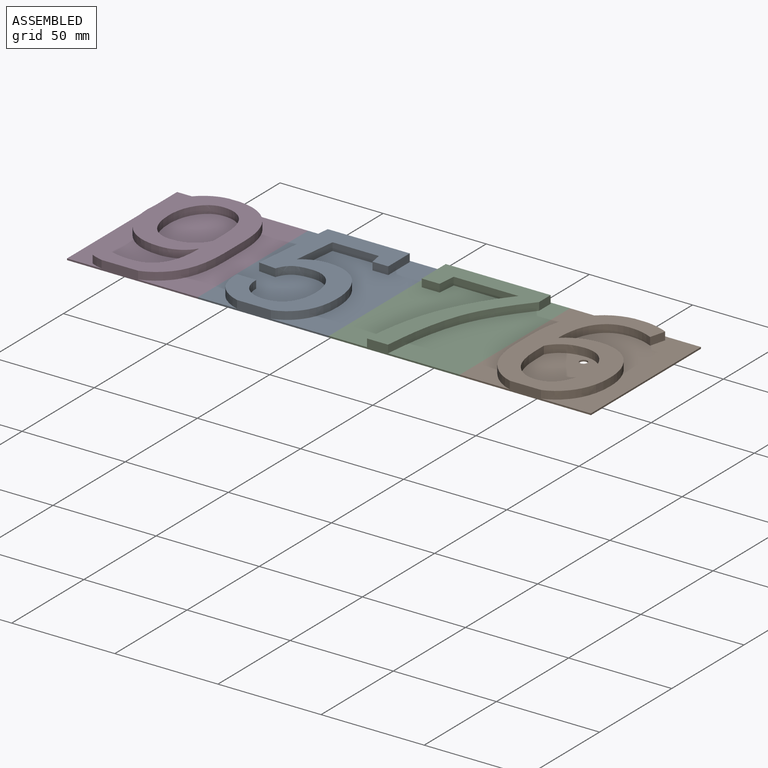
[diagram: assembled view]
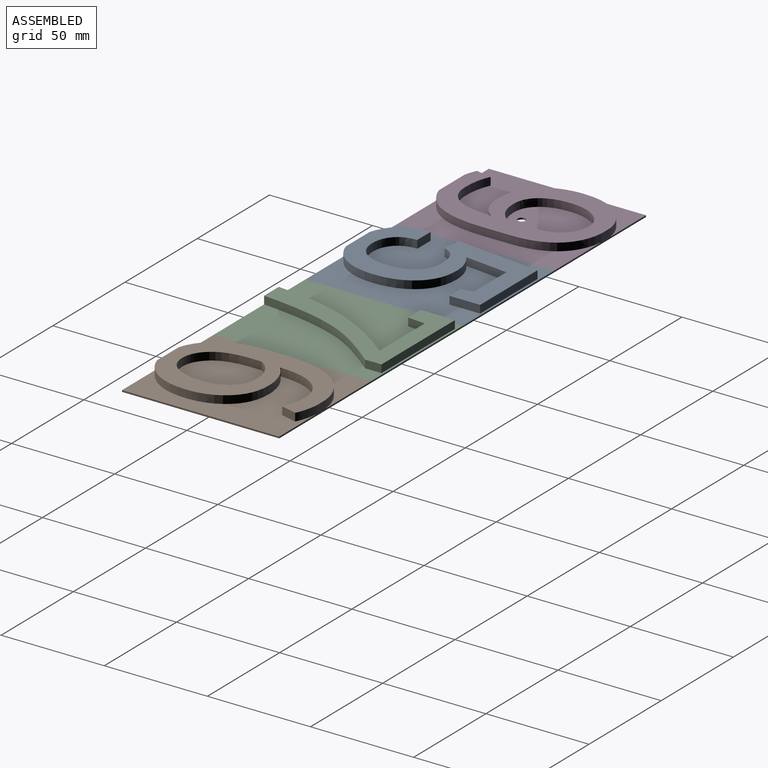
[diagram: assembled view, second angle]
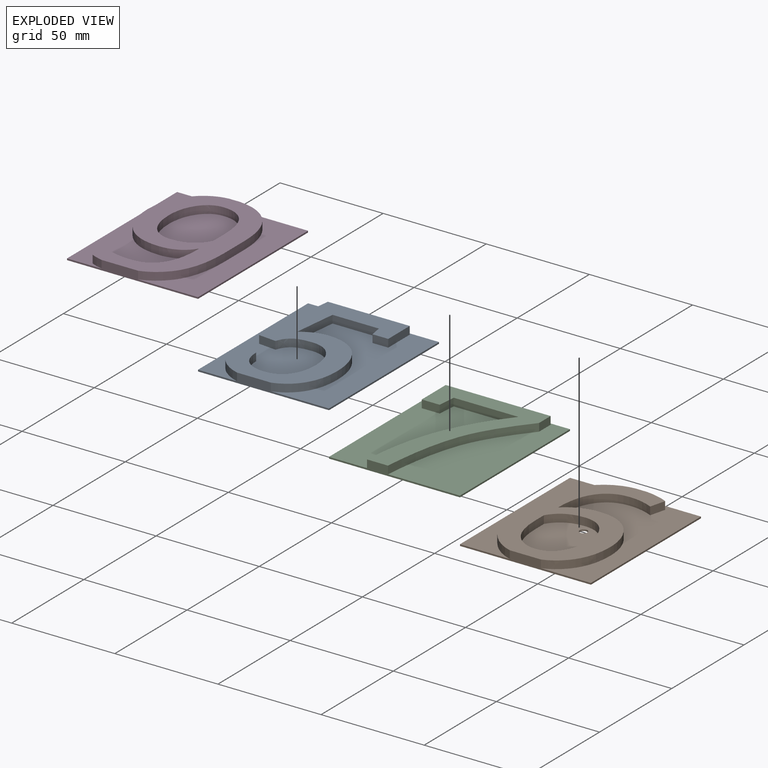
[diagram: exploded view]
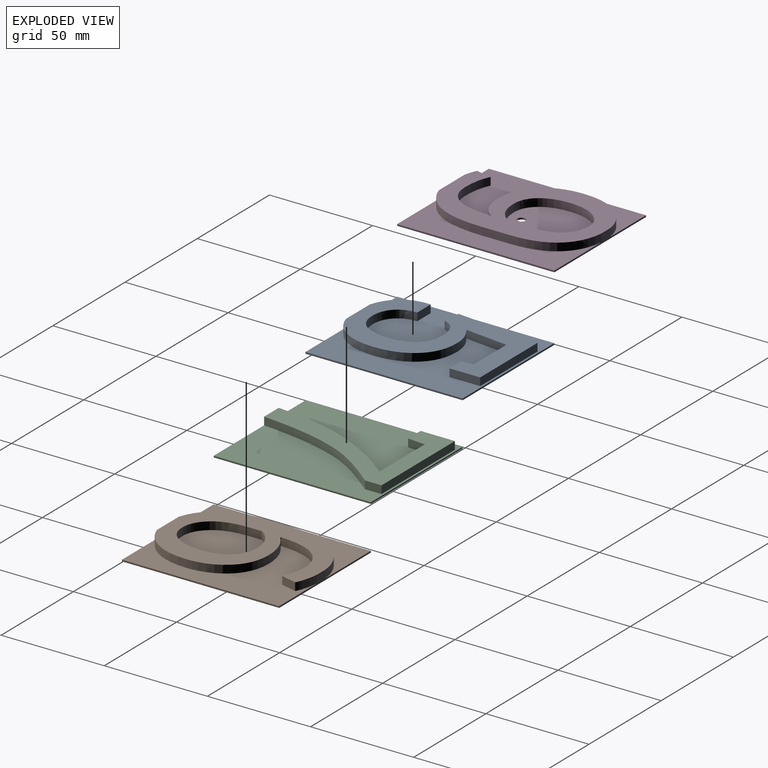
[diagram: exploded view, second angle]
ASSEMBLY  parts=4 mates=3
PART A: 33 faces, bbox 63.5x76.5x4.6 mm
  f0: plane 76.5x63.5mm, normal (0,0,1), area 3183.8mm2, adj f1,f2,f3,f4,f6,f7,f8,f9
  f1: plane 63.5x4.57mm, normal (0,-1,0), area 111mm2, adj f0,f2,f4,f5,f6,f31,f32
  f2: plane 76.2x0.76mm, normal (1,0,0), area 58.1mm2, adj f0,f1,f3,f5
  f3: plane 63.5x0.76mm, normal (0,1,0), area 48.4mm2, adj f0,f2,f4,f5
  f4: plane 76.2x0.76mm, normal (-1,0,0), area 58.1mm2, adj f0,f1,f3,f5
  f5: plane 76.2x63.5mm, normal (0,0,-1), area 4838.7mm2, adj f1,f2,f3,f4
  f6: extruded ~9.32x5.79mm, area 42.4mm2, adj f0,f1,f7,f32
  f7: extruded ~18.19x6.08mm, area 74.7mm2, adj f0,f6,f8,f32
  f8: extruded ~18.5x5.97mm, area 75.7mm2, adj f0,f7,f9,f32
  f9: extruded ~16.35x6.77mm, area 69.7mm2, adj f0,f8,f10,f32
  f10: extruded ~6.75x3.81mm, area 26.3mm2, adj f0,f9,f11,f32
  f11: extruded ~5.24x3.81mm, area 22.9mm2, adj f0,f10,f12,f32
  f12: plane 21.13x3.81mm, normal (0.99,-0.11,0), area 81mm2, adj f0,f11,f13,f32
  f13: plane 22.47x3.81mm, normal (0,-1,0), area 85.6mm2, adj f0,f12,f14,f32
  f14: plane 5.84x3.81mm, normal (-0.99,-0.16,0), area 22.5mm2, adj f0,f13,f15,f32
  f15: plane 7.66x3.81mm, normal (0,-1,0), area 29.2mm2, adj f0,f14,f16,f32
  f16: plane 14.88x3.81mm, normal (1,0,0), area 56.7mm2, adj f0,f15,f17,f32
  f17: plane 39.74x3.81mm, normal (0,1,0), area 151.4mm2, adj f0,f16,f18,f32
  f18: plane 41.29x4.35mm, normal (-0.99,0.1,0), area 158.2mm2, adj f0,f17,f19,f32
  f19: plane 8.48x3.81mm, normal (-0.1,-0.99,0), area 32.5mm2, adj f0,f18,f20,f32
  f20: extruded ~5.53x3.95mm, area 26.4mm2, adj f0,f19,f21,f32
  f21: extruded ~8.7x3.81mm, area 34.3mm2, adj f0,f20,f22,f32
  f22: extruded ~9.96x4.63mm, area 43.4mm2, adj f0,f21,f23,f32
  f23: extruded ~11.91x3.81mm, area 48.3mm2, adj f0,f22,f24,f32
  f24: extruded ~12.45x3.81mm, area 50.3mm2, adj f0,f23,f25,f32
  f25: extruded ~10.03x4.55mm, area 43.6mm2, adj f0,f24,f26,f32
  f26: extruded ~9.11x3.81mm, area 38mm2, adj f0,f25,f27,f32
  f27: extruded ~9.51x3.81mm, area 39.8mm2, adj f0,f26,f28,f32
  f28: plane 9.21x3.81mm, normal (0,1,0), area 35.1mm2, adj f0,f27,f29,f32
  f29: plane 3.81x0.31mm, normal (-0.95,0.3,0), area 1.3mm2, adj f0,f28,f30,f32
  f30: extruded ~15.35x6.09mm, area 65.2mm2, adj f0,f29,f31,f32
  f31: extruded ~7.82x4.13mm, area 33.9mm2, adj f0,f1,f30,f32
  f32: plane 75.54x45.99mm, normal (0,0,1), area 1654.9mm2, adj f1,f6,f7,f8,f9,f10,f11,f12
PART B: 38 faces, bbox 63.5x76.7x4.6 mm
  f0: plane 76.53x46.75mm, normal (0,0,1), area 1557.5mm2, adj f2,f3,f4,f15,f21,f22,f23,f24
  f1: plane 76.66x32.2mm, normal (0,0,1), area 788.7mm2, adj f2,f4,f5,f16,f17,f18,f19,f20
  f2: plane 63.5x4.57mm, normal (0,-1,0), area 106.2mm2, adj f0,f1,f3,f5,f6,f20,f21,f35
  f3: plane 76.2x0.76mm, normal (1,0,0), area 58.1mm2, adj f0,f2,f4,f6
  f4: plane 63.5x4.57mm, normal (0,1,0), area 70.6mm2, adj f0,f1,f3,f5,f6,f15,f16,f35
  f5: plane 76.2x0.76mm, normal (-1,0,0), area 58.1mm2, adj f1,f2,f4,f6
  f6: plane 76.2x63.5mm, normal (0,0,-1), area 4827.9mm2, adj f2,f3,f4,f5,f37
  f7: extruded ~8.9x3.81mm, area 35.2mm2, adj f8,f34,f35,f36
  f8: extruded ~10.36x4.81mm, area 45.2mm2, adj f7,f9,f35,f36
  f9: extruded ~12.25x3.81mm, area 49.7mm2, adj f8,f10,f35,f36
  f10: extruded ~13.15x3.81mm, area 52.6mm2, adj f9,f11,f35,f36
  f11: extruded ~9.74x5.29mm, area 44.2mm2, adj f10,f12,f35,f36
  f12: extruded ~10.98x5.63mm, area 48.8mm2, adj f11,f13,f35,f36
  f13: extruded ~16.11x4.37mm, area 64.8mm2, adj f12,f14,f35,f36
  f14: plane 6.05x3.81mm, normal (1,0,0), area 23.1mm2, adj f13,f34,f35,f36
  f15: extruded ~4.67x3.81mm, area 18mm2, adj f0,f4,f33,f35
  f16: extruded ~17.33x9.23mm, area 76.9mm2, adj f1,f4,f17,f35
  f17: extruded ~27.24x7.86mm, area 110.2mm2, adj f1,f16,f18,f35
  f18: plane 10.12x3.81mm, normal (-1,0,0), area 38.6mm2, adj f1,f17,f19,f35
  f19: extruded ~22.7x7.23mm, area 92.9mm2, adj f1,f18,f20,f35
  f20: extruded ~10.63x6.92mm, area 48.9mm2, adj f1,f2,f19,f35
  f21: extruded ~9.46x6.28mm, area 43.8mm2, adj f0,f2,f22,f35
  f22: extruded ~19.04x6.38mm, area 78.2mm2, adj f0,f21,f23,f35
  f23: extruded ~17.68x5.99mm, area 72.7mm2, adj f0,f22,f24,f35
  f24: extruded ~16.07x6.98mm, area 69mm2, adj f0,f23,f25,f35
  f25: extruded ~9.05x3.81mm, area 35.2mm2, adj f0,f24,f26,f35
  f26: extruded ~7.08x4.26mm, area 31.7mm2, adj f0,f25,f27,f35
  f27: plane 3.81x0.2mm, normal (0.71,0.71,0), area 1.1mm2, adj f0,f26,f28,f35
  f28: extruded ~18.01x4.98mm, area 72.4mm2, adj f0,f27,f29,f35
  f29: extruded ~12.58x5.97mm, area 55.1mm2, adj f0,f28,f30,f35
  f30: extruded ~6.61x3.81mm, area 25.4mm2, adj f0,f29,f31,f35
  f31: extruded ~5.32x3.81mm, area 21.6mm2, adj f0,f30,f32,f35
  f32: plane 7.59x3.81mm, normal (0.97,-0.25,0), area 29.9mm2, adj f0,f31,f33,f35
  f33: extruded ~6.28x3.81mm, area 25.5mm2, adj f0,f15,f32,f35
  f34: extruded ~5.61x5.57mm, area 30.5mm2, adj f7,f14,f35,f36
  f35: plane 76.66x48.88mm, normal (0,0,1), area 1664.1mm2, adj f2,f4,f7,f8,f9,f10,f11,f12
  f36: plane 35.5x28.58mm, normal (0,0,1), area 817.7mm2, adj f7,f8,f9,f10,f11,f12,f13,f14
  f37: cylinder r=1.85mm len=3.7mm, axis (0,0,-1), area 8.9mm2, adj f6,f36
PART C: 19 faces, bbox 63.5x76.2x4.6 mm
  f0: plane 76.2x63.5mm, normal (0,0,1), area 3699.8mm2, adj f1,f2,f3,f4,f6,f7,f8,f9
  f1: plane 76.2x0.76mm, normal (-1,0,0), area 58.1mm2, adj f0,f2,f4,f5
  f2: plane 63.5x4.57mm, normal (0,-1,0), area 87.1mm2, adj f0,f1,f3,f5,f6,f17,f18
  f3: plane 76.2x0.76mm, normal (1,0,0), area 58.1mm2, adj f0,f2,f4,f5
  f4: plane 63.5x0.76mm, normal (0,1,0), area 48.4mm2, adj f0,f1,f3,f5
  f5: plane 76.2x63.5mm, normal (0,0,-1), area 4838.7mm2, adj f1,f2,f3,f4
  f6: plane 8.12x3.81mm, normal (0.99,-0.1,0), area 31.1mm2, adj f0,f2,f7,f18
  f7: extruded ~30.35x6.9mm, area 118.9mm2, adj f0,f6,f8,f18
  f8: extruded ~28.77x18.43mm, area 130.7mm2, adj f0,f7,f9,f18
  f9: plane 8x3.81mm, normal (1,0,0), area 30.5mm2, adj f0,f8,f10,f18
  f10: plane 50.85x3.81mm, normal (0,1,0), area 193.7mm2, adj f0,f9,f11,f18
  f11: plane 16.64x3.81mm, normal (-1,0,0), area 63.4mm2, adj f0,f10,f12,f18
  f12: plane 8.68x3.81mm, normal (0,-1,0), area 33.1mm2, adj f0,f11,f13,f18
  f13: plane 8.63x3.81mm, normal (1,-0.09,0), area 33mm2, adj f0,f12,f14,f18
  f14: plane 31.42x3.81mm, normal (0,-1,0), area 119.7mm2, adj f0,f13,f15,f18
  f15: extruded ~27.34x17.1mm, area 123.2mm2, adj f0,f14,f16,f18
  f16: extruded ~31.78x8.42mm, area 125.7mm2, adj f0,f15,f17,f18
  f17: plane 8.12x3.81mm, normal (-0.99,0.1,0), area 31.1mm2, adj f0,f2,f16,f18
  f18: plane 75.24x50.85mm, normal (0,0,1), area 1138.9mm2, adj f2,f6,f7,f8,f9,f10,f11,f12
PART D: 37 faces, bbox 63.5x76.7x4.6 mm
  f0: plane 76.71x33.41mm, normal (0,0,1), area 1066mm2, adj f3,f4,f5,f17,f31,f32,f33,f34
  f1: plane 76.4x42.43mm, normal (0,0,1), area 1209.6mm2, adj f3,f5,f6,f18,f19,f20,f21,f22
  f2: plane 36.68x28.33mm, normal (0,0,1), area 847.2mm2, adj f8,f9,f10,f11,f12,f13,f14,f15
  f3: plane 63.5x4.57mm, normal (0,-1,0), area 115.8mm2, adj f0,f1,f4,f6,f7,f30,f31,f36
  f4: plane 76.2x0.76mm, normal (1,0,0), area 58.1mm2, adj f0,f3,f5,f7
  f5: plane 63.5x4.57mm, normal (0,1,0), area 69.7mm2, adj f0,f1,f4,f6,f7,f17,f18,f36
  f6: plane 76.2x0.76mm, normal (-1,0,0), area 58.1mm2, adj f1,f3,f5,f7
  f7: plane 76.2x63.5mm, normal (0,0,-1), area 4827.9mm2, adj f3,f4,f5,f6,f8
  f8: cylinder r=1.85mm len=3.7mm, axis (0,0,-1), area 8.9mm2, adj f2,f7
  f9: extruded ~9.38x3.81mm, area 37.4mm2, adj f2,f10,f35,f36
  f10: extruded ~9.92x4.88mm, area 43.8mm2, adj f2,f9,f11,f36
  f11: extruded ~13x3.81mm, area 52.3mm2, adj f2,f10,f12,f36
  f12: extruded ~13.54x3.9mm, area 54.6mm2, adj f2,f11,f13,f36
  f13: extruded ~9.54x5.27mm, area 43.2mm2, adj f2,f12,f14,f36
  f14: extruded ~11.08x5.06mm, area 48.3mm2, adj f2,f13,f15,f36
  f15: extruded ~15.03x3.81mm, area 60.1mm2, adj f2,f14,f16,f36
  f16: plane 7.97x3.81mm, normal (-1,0,0), area 30.4mm2, adj f2,f15,f35,f36
  f17: extruded ~15.5x7.23mm, area 66.8mm2, adj f0,f5,f34,f36
  f18: extruded ~13.98x7.39mm, area 61.7mm2, adj f1,f5,f19,f36
  f19: extruded ~19.3x6.79mm, area 79.8mm2, adj f1,f18,f20,f36
  f20: extruded ~19.1x6.35mm, area 78.6mm2, adj f1,f19,f21,f36
  f21: extruded ~17.36x6.8mm, area 73.2mm2, adj f1,f20,f22,f36
  f22: extruded ~8.37x3.81mm, area 33mm2, adj f1,f21,f23,f36
  f23: extruded ~5.79x5.33mm, area 30.4mm2, adj f1,f22,f24,f36
  f24: plane 3.81x0.26mm, normal (-0.78,-0.63,0), area 1.3mm2, adj f1,f23,f25,f36
  f25: extruded ~18.06x4.42mm, area 72mm2, adj f1,f24,f26,f36
  f26: extruded ~11.6x5.61mm, area 51mm2, adj f1,f25,f27,f36
  f27: extruded ~7.42x3.81mm, area 28.4mm2, adj f1,f26,f28,f36
  f28: extruded ~6.44x3.81mm, area 25.9mm2, adj f1,f27,f29,f36
  f29: plane 7.69x3.81mm, normal (-0.98,0.2,0), area 29.9mm2, adj f1,f28,f30,f36
  f30: extruded ~5.73x3.81mm, area 23.1mm2, adj f1,f3,f29,f36
  f31: extruded ~11.32x7.44mm, area 52.4mm2, adj f0,f3,f32,f36
  f32: extruded ~26.14x7.26mm, area 105.5mm2, adj f0,f31,f33,f36
  f33: plane 13.59x3.81mm, normal (1,0,0), area 51.8mm2, adj f0,f32,f34,f36
  f34: extruded ~21.79x6.8mm, area 89mm2, adj f0,f17,f33,f36
  f35: extruded ~6.19x5.4mm, area 31.8mm2, adj f2,f9,f16,f36
  f36: plane 76.71x48.67mm, normal (0,0,1), area 1705mm2, adj f3,f5,f9,f10,f11,f12,f13,f14
PLACE A t=(45.68,4.47,-4.85)mm
PLACE B t=(172.68,4.47,-4.85)mm
PLACE C t=(77.43,42.57,-4.85)mm
PLACE D t=(-17.82,4.47,-4.85)mm
MATE fastened D.f0 <-> A.f0  axis (0,0,1) through (-17.82,42.57,-4.85)mm
MATE fastened A.f0 <-> C.f0  axis (0,0,1) through (45.68,42.57,-4.85)mm
MATE fastened B.f1 <-> C.f0  axis (0,0,1) through (109.18,42.57,-4.85)mm
